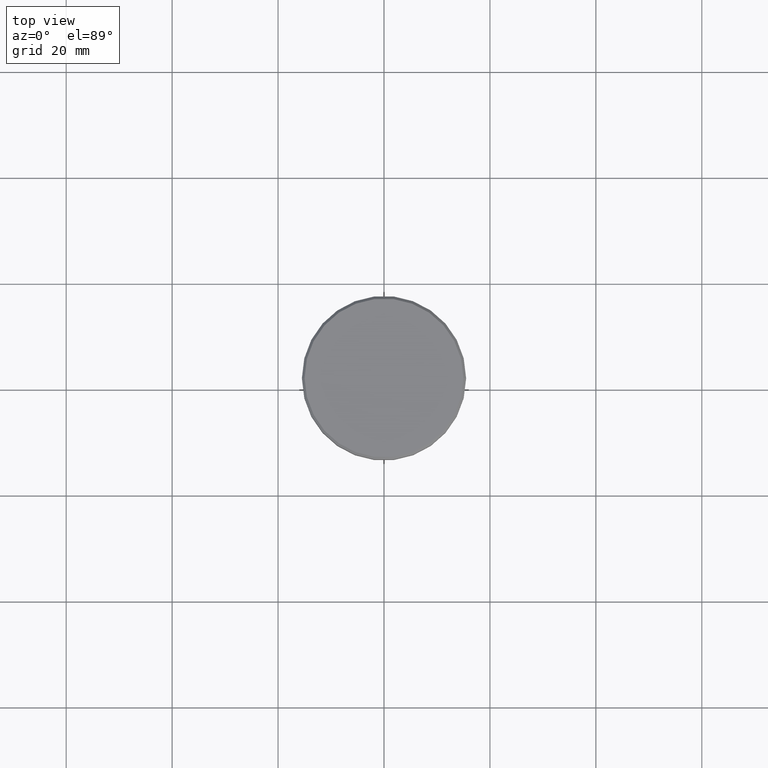
[diagram: clean part render]
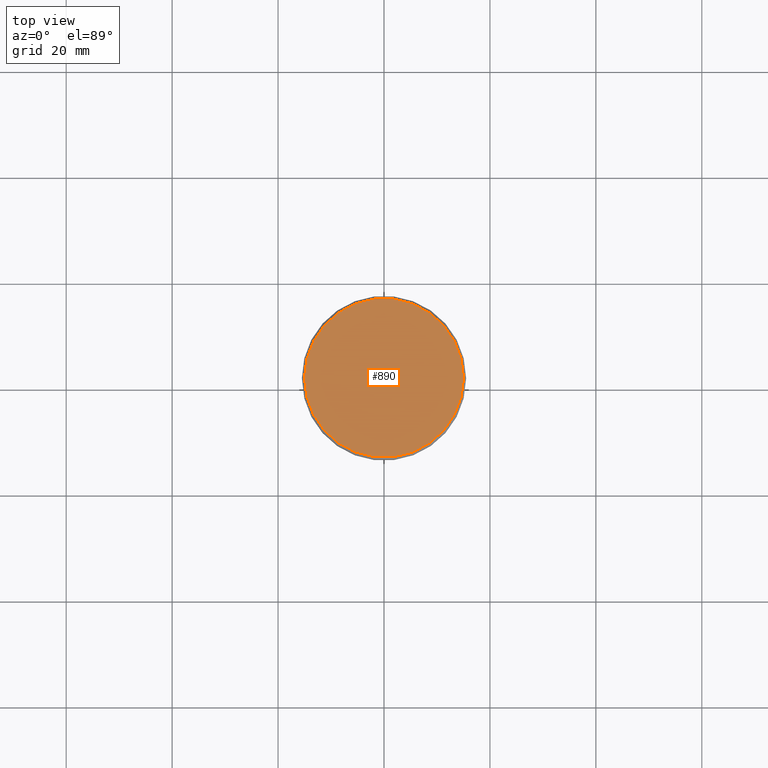
[diagram: same view with one face highlighted and labeled with its STEP entity id]
A machine part, top view. The second image highlights one B-rep face of the part: STEP entity #890.
In plain terms, the highlighted planar face has unit normal (0, -0, 1).
Its self-contained STEP definition (entity closure, byte-faithful):
#77 = DIRECTION ( 'NONE',  ( -0.000000000000000000, -0.000000000000000000, 1.000000000000000000 ) ) ;
#130 = VERTEX_POINT ( 'NONE', #705 ) ;
#162 = CARTESIAN_POINT ( 'NONE',  ( 0.000000000000000000, 0.000000000000000000, 0.000000000000000000 ) ) ;
#217 = DIRECTION ( 'NONE',  ( 1.000000000000000000, 0.000000000000000000, 0.000000000000000000 ) ) ;
#295 = CARTESIAN_POINT ( 'NONE',  ( 0.000000000000000000, 0.000000000000000000, 0.000000000000000000 ) ) ;
#297 = PLANE ( 'NONE',  #673 ) ;
#312 = FACE_OUTER_BOUND ( 'NONE', #1153, .T. ) ;
#350 = ORIENTED_EDGE ( 'NONE', *, *, #709, .T. ) ;
#385 = AXIS2_PLACEMENT_3D ( 'NONE', #295, #843, #1015 ) ;
#386 = ORIENTED_EDGE ( 'NONE', *, *, #1177, .T. ) ;
#408 = CARTESIAN_POINT ( 'NONE',  ( -15.00000000000002665, 0.000000000000000000, 0.000000000000000000 ) ) ;
#480 = CIRCLE ( 'NONE', #523, 15.00000000000002665 ) ;
#523 = AXIS2_PLACEMENT_3D ( 'NONE', #162, #77, #1108 ) ;
#554 = VERTEX_POINT ( 'NONE', #408 ) ;
#655 = CIRCLE ( 'NONE', #385, 15.00000000000002665 ) ;
#673 = AXIS2_PLACEMENT_3D ( 'NONE', #1047, #1061, #217 ) ;
#705 = CARTESIAN_POINT ( 'NONE',  ( 15.00000000000002665, 1.867586368699715348E-15, 0.000000000000000000 ) ) ;
#709 = EDGE_CURVE ( 'NONE', #554, #130, #655, .T. ) ;
#843 = DIRECTION ( 'NONE',  ( -0.000000000000000000, -0.000000000000000000, 1.000000000000000000 ) ) ;
#890 = ADVANCED_FACE ( 'NONE', ( #312 ), #297, .T. ) ;
#1015 = DIRECTION ( 'NONE',  ( 1.000000000000000000, 0.000000000000000000, 0.000000000000000000 ) ) ;
#1047 = CARTESIAN_POINT ( 'NONE',  ( 0.000000000000000000, 0.000000000000000000, 0.000000000000000000 ) ) ;
#1061 = DIRECTION ( 'NONE',  ( 0.000000000000000000, -0.000000000000000000, 1.000000000000000000 ) ) ;
#1108 = DIRECTION ( 'NONE',  ( 1.000000000000000000, 0.000000000000000000, 0.000000000000000000 ) ) ;
#1153 = EDGE_LOOP ( 'NONE', ( #350, #386 ) ) ;
#1177 = EDGE_CURVE ( 'NONE', #130, #554, #480, .T. ) ;